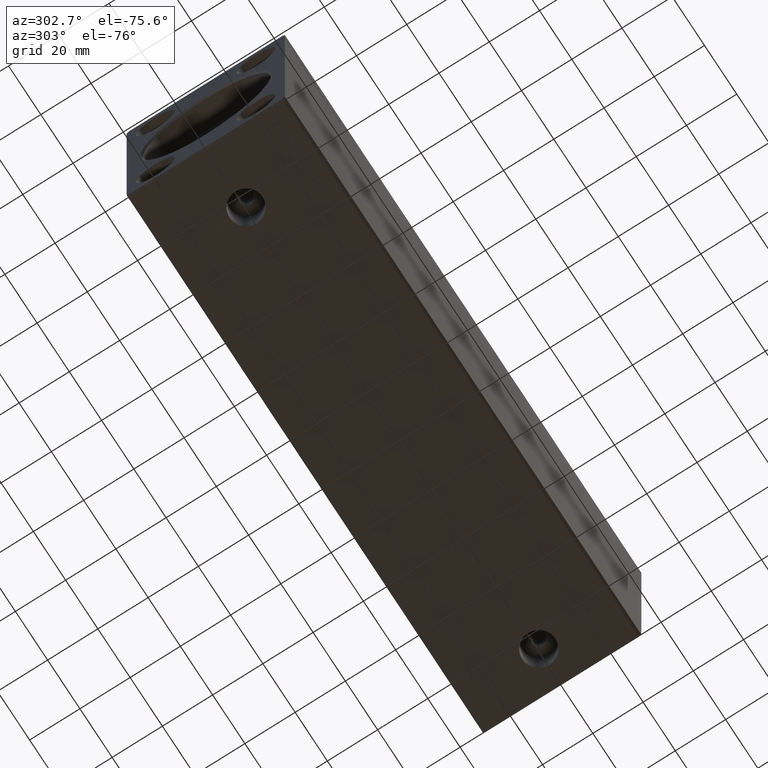
[diagram: clean part render]
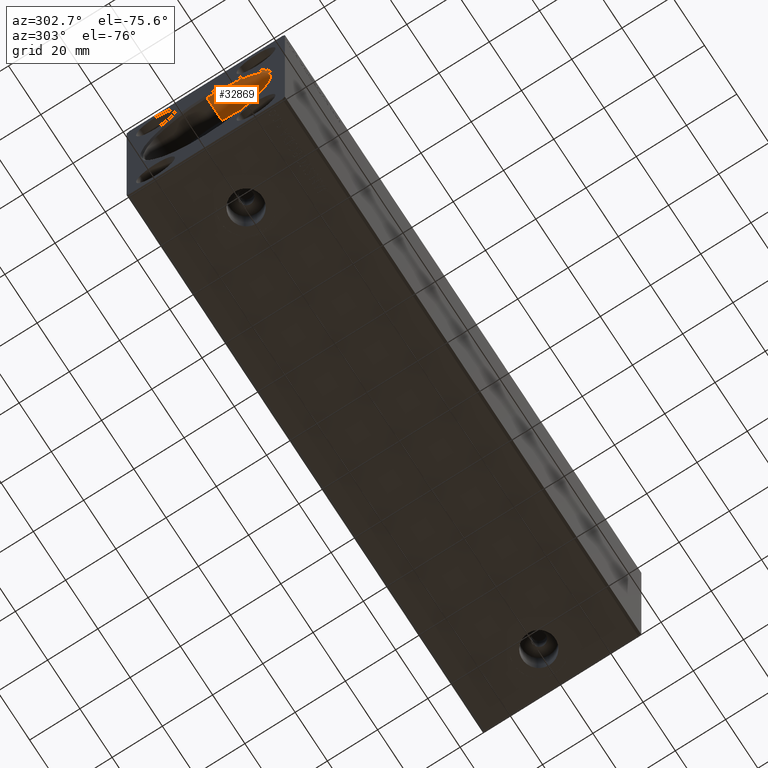
[diagram: same view with one face highlighted and labeled with its STEP entity id]
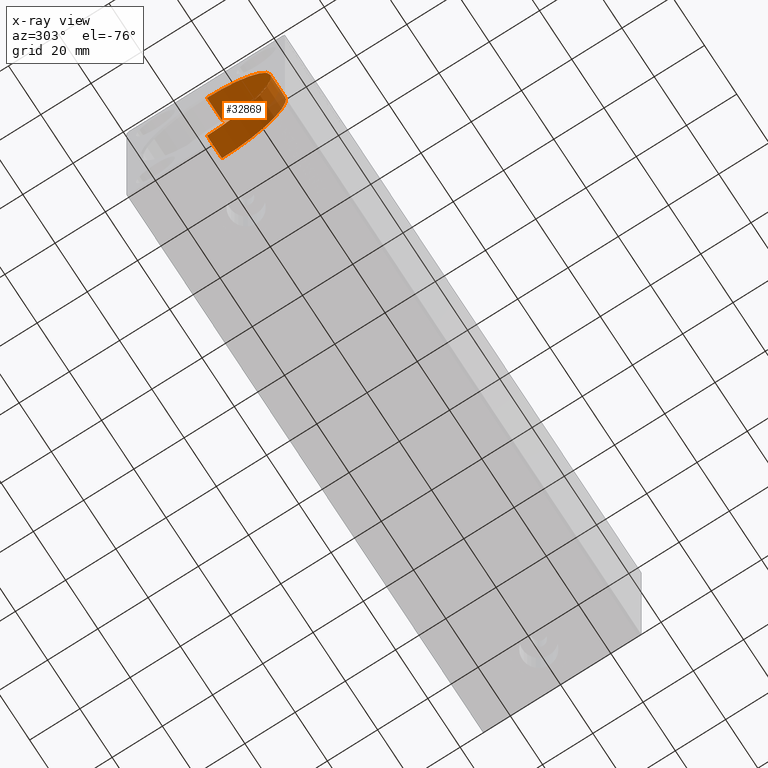
[diagram: x-ray of the same camera — body ghosted, the highlighted face saturated]
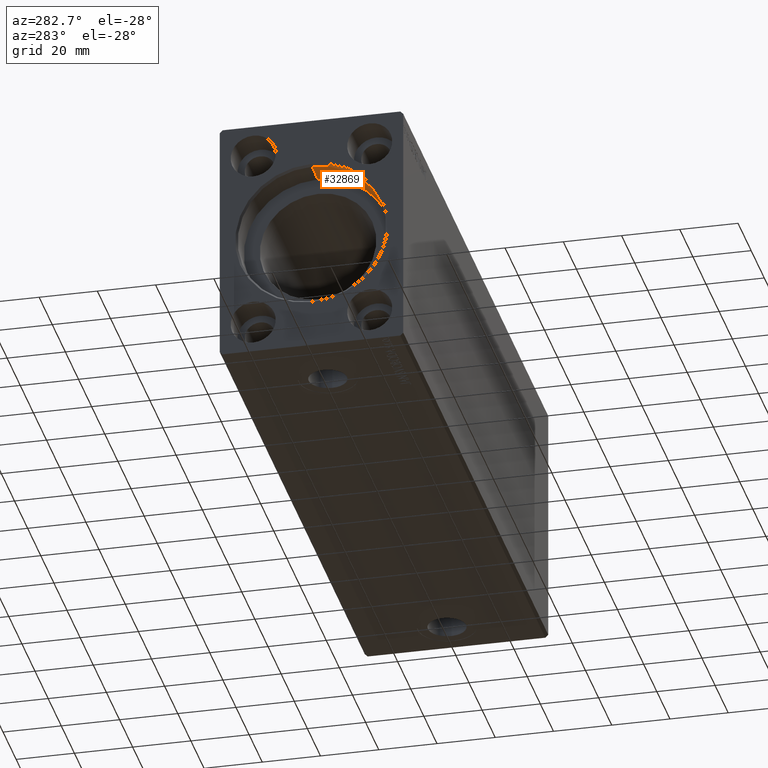
[diagram: same view with one face highlighted and labeled with its STEP entity id]
A machine part, auxiliary view. The second image highlights one B-rep face of the part: STEP entity #32869.
The next image is the same camera in x-ray: the body ghosted, the highlighted face saturated — about 8% of this face is hidden behind the body in this view.
A second angle (auxiliary view) of the same face is appended — the face is thin or edge-on in the first view.
In plain terms, the highlighted cylindrical surface (partial cylindrical patch) has radius 25.5 mm, axis along (-1, -0, -0).
Its self-contained STEP definition (entity closure, byte-faithful):
#99 = CARTESIAN_POINT ( 'NONE',  ( 10.00000000000000000, 0.000000000000000000, 25.50000000000000000 ) ) ;
#783 = EDGE_LOOP ( 'NONE', ( #7900, #33351, #12703, #1461 ) ) ;
#915 = CARTESIAN_POINT ( 'NONE',  ( 10.00000000000000000, 0.000000000000000000, 25.50000000000000000 ) ) ;
#1461 = ORIENTED_EDGE ( 'NONE', *, *, #14216, .F. ) ;
#3015 = CIRCLE ( 'NONE', #20878, 25.50000000000000000 ) ;
#3683 = VERTEX_POINT ( 'NONE', #3957 ) ;
#3957 = CARTESIAN_POINT ( 'NONE',  ( 0.6999999999999506617, 0.000000000000000000, 25.50000000000000000 ) ) ;
#5164 = EDGE_CURVE ( 'NONE', #5991, #3683, #16707, .T. ) ;
#5991 = VERTEX_POINT ( 'NONE', #10510 ) ;
#7192 = VECTOR ( 'NONE', #33345, 1000.000000000000000 ) ;
#7301 = EDGE_CURVE ( 'NONE', #25107, #12087, #3015, .T. ) ;
#7900 = ORIENTED_EDGE ( 'NONE', *, *, #7301, .F. ) ;
#9415 = DIRECTION ( 'NONE',  ( 0.000000000000000000, 0.000000000000000000, 1.000000000000000000 ) ) ;
#9484 = DIRECTION ( 'NONE',  ( 0.000000000000000000, 0.000000000000000000, 1.000000000000000000 ) ) ;
#10510 = CARTESIAN_POINT ( 'NONE',  ( 0.6999999999999506617, 3.122849337825750222E-15, -25.50000000000000000 ) ) ;
#12087 = VERTEX_POINT ( 'NONE', #99 ) ;
#12245 = DIRECTION ( 'NONE',  ( -1.000000000000000000, -0.000000000000000000, -0.000000000000000000 ) ) ;
#12703 = ORIENTED_EDGE ( 'NONE', *, *, #5164, .T. ) ;
#14216 = EDGE_CURVE ( 'NONE', #12087, #3683, #20471, .T. ) ;
#16707 = CIRCLE ( 'NONE', #22184, 25.50000000000000000 ) ;
#18386 = VECTOR ( 'NONE', #12245, 1000.000000000000000 ) ;
#18896 = FACE_OUTER_BOUND ( 'NONE', #783, .T. ) ;
#19105 = CYLINDRICAL_SURFACE ( 'NONE', #20592, 25.50000000000000000 ) ;
#20471 = LINE ( 'NONE', #915, #7192 ) ;
#20592 = AXIS2_PLACEMENT_3D ( 'NONE', #29171, #32178, #9415 ) ;
#20878 = AXIS2_PLACEMENT_3D ( 'NONE', #23242, #36344, #9484 ) ;
#21863 = CARTESIAN_POINT ( 'NONE',  ( 0.6999999999999506617, 0.000000000000000000, 0.000000000000000000 ) ) ;
#22184 = AXIS2_PLACEMENT_3D ( 'NONE', #21863, #40566, #34968 ) ;
#23242 = CARTESIAN_POINT ( 'NONE',  ( 10.00000000000000000, 0.000000000000000000, 0.000000000000000000 ) ) ;
#25107 = VERTEX_POINT ( 'NONE', #27134 ) ;
#27134 = CARTESIAN_POINT ( 'NONE',  ( 10.00000000000000000, 3.122849337825750222E-15, -25.50000000000000000 ) ) ;
#28233 = EDGE_CURVE ( 'NONE', #25107, #5991, #34818, .T. ) ;
#29171 = CARTESIAN_POINT ( 'NONE',  ( 10.00000000000000000, 0.000000000000000000, 0.000000000000000000 ) ) ;
#32178 = DIRECTION ( 'NONE',  ( -1.000000000000000000, -0.000000000000000000, -0.000000000000000000 ) ) ;
#32869 = ADVANCED_FACE ( 'NONE', ( #18896 ), #19105, .F. ) ;
#33345 = DIRECTION ( 'NONE',  ( -1.000000000000000000, -0.000000000000000000, -0.000000000000000000 ) ) ;
#33351 = ORIENTED_EDGE ( 'NONE', *, *, #28233, .T. ) ;
#34818 = LINE ( 'NONE', #41465, #18386 ) ;
#34968 = DIRECTION ( 'NONE',  ( 0.000000000000000000, 0.000000000000000000, -1.000000000000000000 ) ) ;
#36344 = DIRECTION ( 'NONE',  ( -1.000000000000000000, 0.000000000000000000, 0.000000000000000000 ) ) ;
#40566 = DIRECTION ( 'NONE',  ( -1.000000000000000000, 0.000000000000000000, 0.000000000000000000 ) ) ;
#41465 = CARTESIAN_POINT ( 'NONE',  ( 10.00000000000000000, 3.122849337825750222E-15, -25.50000000000000000 ) ) ;